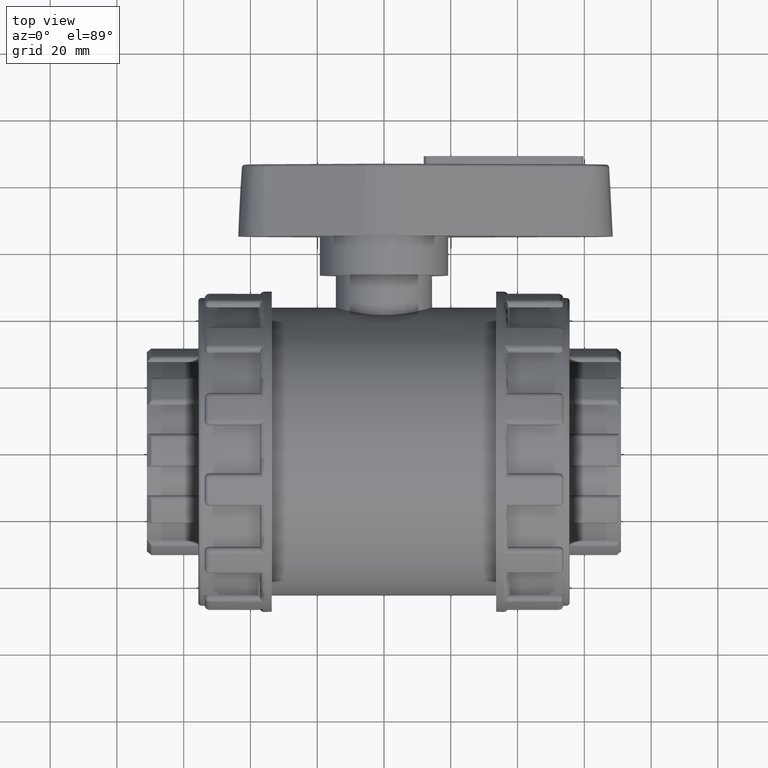
[diagram: clean part render]
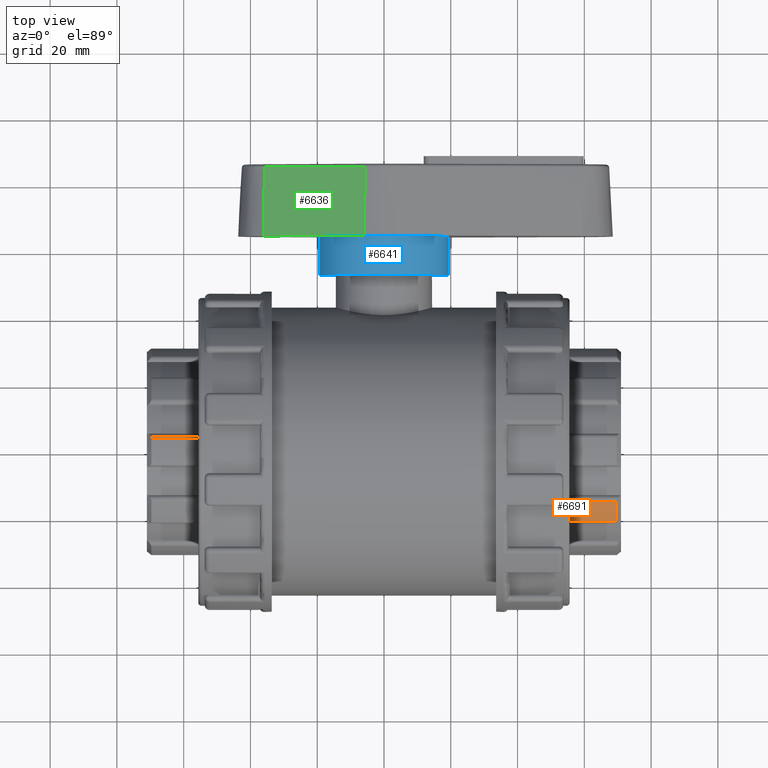
[diagram: same view with three faces highlighted in distinct colors, each labeled with its STEP entity id]
A machine part, top view with three faces highlighted in distinct colors.
Their STEP definitions:

[orange] entity #6691 — the highlighted cylindrical surface (partial cylindrical patch) has radius 31.3915 mm, axis along (1, 0, 0).
#494=FACE_OUTER_BOUND('',#932,.T.);
#932=EDGE_LOOP('',(#4626,#4627,#4628,#4629));
#1388=LINE('',#10963,#1784);
#1398=LINE('',#11060,#1794);
#1784=VECTOR('',#8372,14.05465);
#1794=VECTOR('',#8420,14.05465);
#2196=CIRCLE('',#7218,31.3915);
#2197=CIRCLE('',#7219,31.3915);
#2756=VERTEX_POINT('',#10949);
#2757=VERTEX_POINT('',#10962);
#2776=VERTEX_POINT('',#11057);
#2777=VERTEX_POINT('',#11059);
#3447=EDGE_CURVE('',#2756,#2757,#1388,.T.);
#3472=EDGE_CURVE('',#2776,#2777,#1398,.T.);
#3475=EDGE_CURVE('',#2777,#2756,#2196,.T.);
#3476=EDGE_CURVE('',#2776,#2757,#2197,.T.);
#4626=ORIENTED_EDGE('',*,*,#3447,.F.);
#4627=ORIENTED_EDGE('',*,*,#3475,.F.);
#4628=ORIENTED_EDGE('',*,*,#3472,.F.);
#4629=ORIENTED_EDGE('',*,*,#3476,.T.);
#6473=CYLINDRICAL_SURFACE('',#7217,31.3915);
#6691=ADVANCED_FACE('',(#494),#6473,.T.);
#7217=AXIS2_PLACEMENT_3D('',#11075,#8422,#8423);
#7218=AXIS2_PLACEMENT_3D('',#11076,#8424,#8425);
#7219=AXIS2_PLACEMENT_3D('',#11077,#8426,#8427);
#8372=DIRECTION('',(-1.,0.,0.));
#8420=DIRECTION('',(1.,0.,0.));
#8422=DIRECTION('center_axis',(1.,0.,0.));
#8423=DIRECTION('ref_axis',(0.,1.,0.));
#8424=DIRECTION('center_axis',(1.,0.,0.));
#8425=DIRECTION('ref_axis',(0.,-1.,0.));
#8426=DIRECTION('center_axis',(1.,0.,0.));
#8427=DIRECTION('ref_axis',(0.,0.,-1.));
#10949=CARTESIAN_POINT('',(69.65465,-21.34902311399,23.0140279900829));
#10962=CARTESIAN_POINT('',(55.6,-21.34902311399,23.0140279900829));
#10963=CARTESIAN_POINT('',(71.,-21.34902311399,23.0140279900829));
#11057=CARTESIAN_POINT('',(55.6,-15.2904303306409,27.4158533070524));
#11059=CARTESIAN_POINT('',(69.65465,-15.2904303306409,27.4158533070524));
#11060=CARTESIAN_POINT('',(71.,-15.2904303306409,27.4158533070524));
#11075=CARTESIAN_POINT('Origin',(63.3,0.,0.));
#11076=CARTESIAN_POINT('Origin',(69.65465,0.,0.));
#11077=CARTESIAN_POINT('Origin',(55.6,0.,0.));

[blue] entity #6641 — the highlighted cylindrical surface (bore or boss wall) has radius 19.2 mm, axis along (-0, 1, 0).
#203=FACE_BOUND('',#882,.T.);
#444=FACE_OUTER_BOUND('',#881,.T.);
#881=EDGE_LOOP('',(#4428));
#882=EDGE_LOOP('',(#4429));
#2130=CIRCLE('',#7096,19.2);
#2131=CIRCLE('',#7102,19.2);
#2657=VERTEX_POINT('',#10411);
#2658=VERTEX_POINT('',#10421);
#3318=EDGE_CURVE('',#2657,#2657,#2130,.T.);
#3322=EDGE_CURVE('',#2658,#2658,#2131,.T.);
#4428=ORIENTED_EDGE('',*,*,#3318,.T.);
#4429=ORIENTED_EDGE('',*,*,#3322,.T.);
#6431=CYLINDRICAL_SURFACE('',#7104,19.2);
#6641=ADVANCED_FACE('',(#444,#203),#6431,.T.);
#7096=AXIS2_PLACEMENT_3D('',#10412,#8119,#8120);
#7102=AXIS2_PLACEMENT_3D('',#10422,#8134,#8135);
#7104=AXIS2_PLACEMENT_3D('',#10425,#8138,#8139);
#8119=DIRECTION('center_axis',(3.34324704467329E-16,-1.,0.));
#8120=DIRECTION('ref_axis',(-1.,-5.32520297238759E-16,0.));
#8134=DIRECTION('center_axis',(-3.00964072940555E-16,1.,0.));
#8135=DIRECTION('ref_axis',(1.,3.00964072940555E-16,0.));
#8138=DIRECTION('center_axis',(-3.00964072940555E-16,1.,0.));
#8139=DIRECTION('ref_axis',(-1.,-5.32520297238759E-16,0.));
#10411=CARTESIAN_POINT('',(19.2,64.5,2.35132185436292E-15));
#10412=CARTESIAN_POINT('Origin',(-3.52127965340448E-15,64.5,0.));
#10421=CARTESIAN_POINT('',(-19.2,52.8,0.));
#10422=CARTESIAN_POINT('Origin',(-3.71127622851111E-30,52.8,0.));
#10425=CARTESIAN_POINT('Origin',(-4.99600361081321E-15,69.4,0.));

[green] entity #6636 — the highlighted planar face has unit normal (-0.2905, 0.0523, 0.9554).
#233=PLANE('',#7097);
#439=FACE_OUTER_BOUND('',#875,.T.);
#875=EDGE_LOOP('',(#4410,#4411,#4412,#4413));
#1321=LINE('',#10355,#1717);
#1337=LINE('',#10407,#1733);
#1339=LINE('',#10414,#1735);
#1340=LINE('',#10415,#1736);
#1717=VECTOR('',#8057,31.5727730806149);
#1733=VECTOR('',#8115,31.5727730806149);
#1735=VECTOR('',#8123,20.6783791190688);
#1736=VECTOR('',#8124,20.6783791190687);
#2637=VERTEX_POINT('',#10345);
#2639=VERTEX_POINT('',#10351);
#2654=VERTEX_POINT('',#10404);
#2655=VERTEX_POINT('',#10406);
#3290=EDGE_CURVE('',#2637,#2639,#1321,.T.);
#3315=EDGE_CURVE('',#2655,#2654,#1337,.T.);
#3319=EDGE_CURVE('',#2637,#2655,#1339,.T.);
#3320=EDGE_CURVE('',#2639,#2654,#1340,.T.);
#4410=ORIENTED_EDGE('',*,*,#3290,.F.);
#4411=ORIENTED_EDGE('',*,*,#3319,.T.);
#4412=ORIENTED_EDGE('',*,*,#3315,.T.);
#4413=ORIENTED_EDGE('',*,*,#3320,.F.);
#6636=ADVANCED_FACE('',(#439),#233,.T.);
#7097=AXIS2_PLACEMENT_3D('',#10413,#8121,#8122);
#8057=DIRECTION('',(0.956750699412572,2.85042358102098E-16,0.290909090909091));
#8115=DIRECTION('',(0.956750699412572,2.87947587283932E-16,0.290909090909091));
#8121=DIRECTION('center_axis',(-0.290510410110422,0.0523359562429438,0.95543950583049));
#8122=DIRECTION('ref_axis',(-0.956750699412572,0.,-0.290909090909091));
#8123=DIRECTION('',(-0.0152250054524926,-0.998629534754574,0.0500724627398623));
#8124=DIRECTION('',(-0.0152250054524925,-0.998629534754574,0.0500724627398623));
#10345=CARTESIAN_POINT('',(-35.8056856755883,85.1500401191543,9.22742470530014));
#10351=CARTESIAN_POINT('',(-5.5984129483156,85.1500401191543,18.4122314196608));
#10355=CARTESIAN_POINT('',(-20.702049311952,85.1500401191543,13.8198280624805));
#10404=CARTESIAN_POINT('',(-5.91324138315212,64.5,19.4476487876211));
#10406=CARTESIAN_POINT('',(-36.1205141104249,64.5,10.2628420732605));
#10407=CARTESIAN_POINT('',(-36.1205141104249,64.5,10.2628420732605));
#10413=CARTESIAN_POINT('Origin',(-35.7927272727273,86.,9.1848067143607));
#10414=CARTESIAN_POINT('',(-35.7927272727273,86.,9.1848067143607));
#10415=CARTESIAN_POINT('',(-5.58545454545456,86.,18.3696134287214));